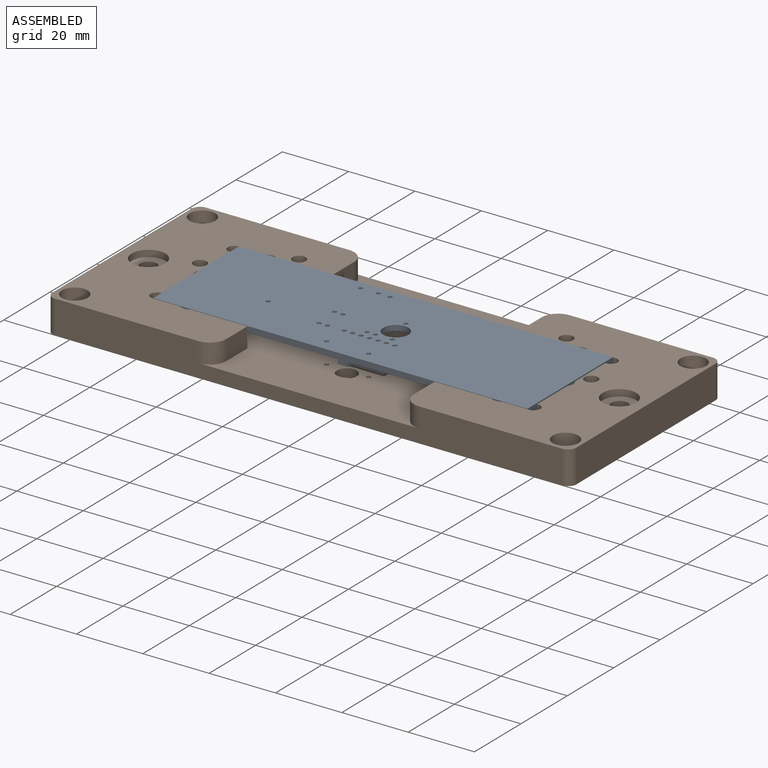
[diagram: assembled view]
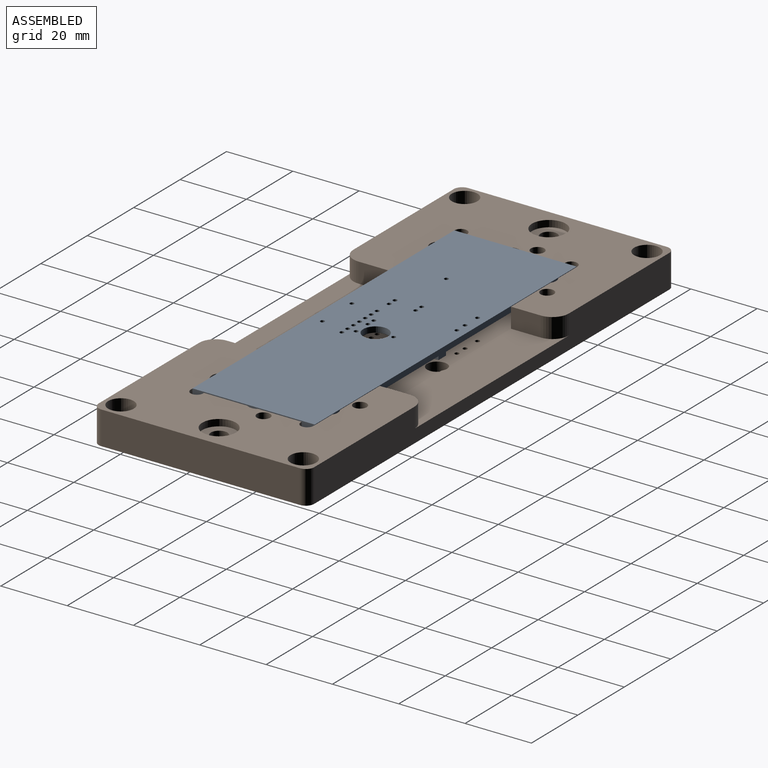
[diagram: assembled view, second angle]
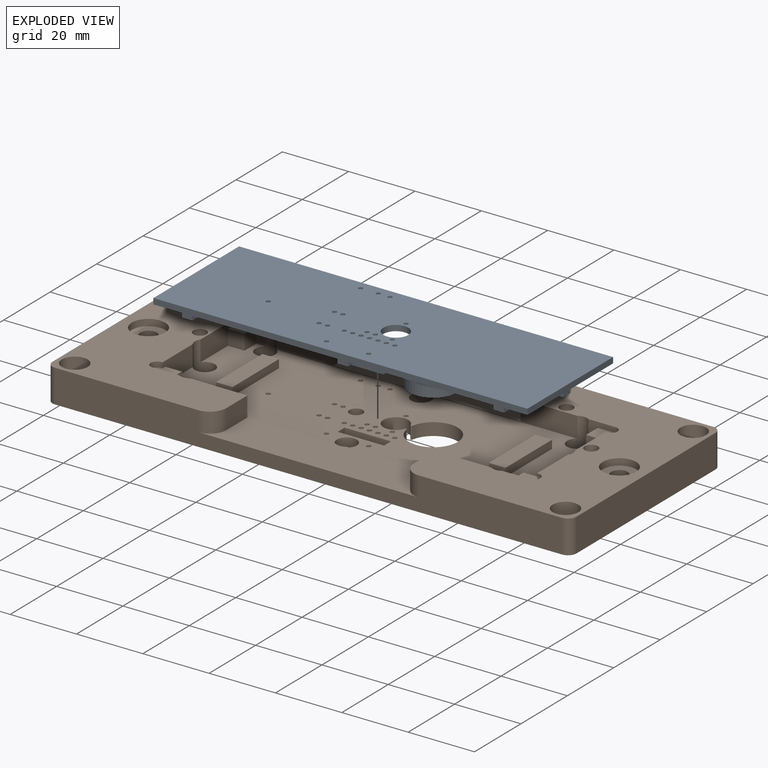
[diagram: exploded view]
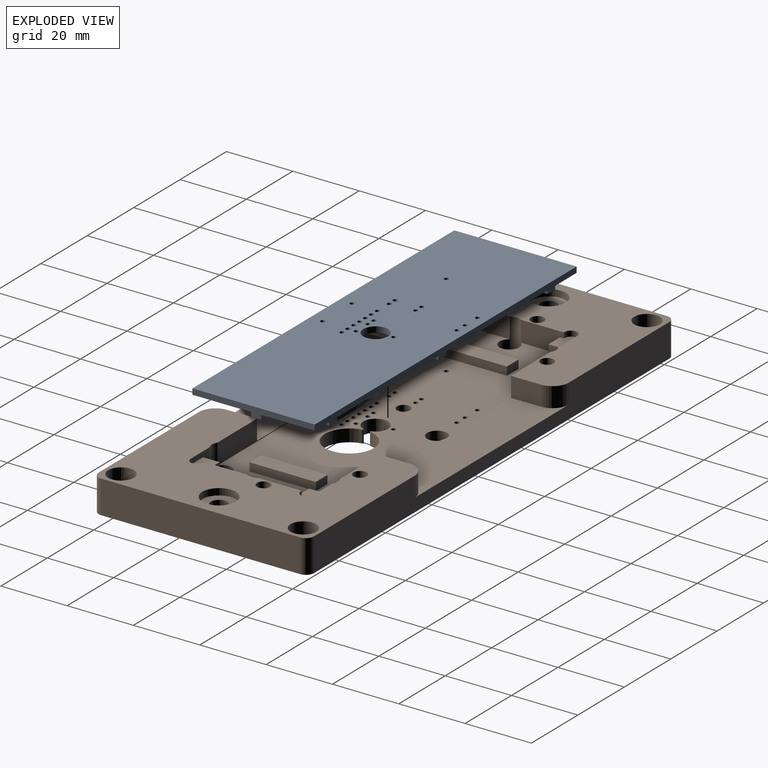
[diagram: exploded view, second angle]
ASSEMBLY  parts=2 mates=3
PART A: 82 faces, bbox 36.9x11.7x112.8 mm
  f0: plane 112.78x36.88mm, normal (0,-1,0), area 3770.4mm2, adj f1,f2,f3,f4,f6,f7,f8,f9
  f1: plane 36.88x1.73mm, normal (0,0,1), area 63.7mm2, adj f0,f2,f4,f5
  f2: plane 112.78x1.73mm, normal (-1,0,0), area 194.8mm2, adj f0,f1,f3,f5
  f3: plane 36.88x1.73mm, normal (0,0,-1), area 63.7mm2, adj f0,f2,f4,f5
  f4: plane 112.78x1.73mm, normal (1,0,0), area 194.8mm2, adj f0,f1,f3,f5
  f5: plane 112.78x36.88mm, normal (0,1,0), area 4088.5mm2, adj f1,f2,f3,f4,f6,f7,f8,f9
  f6: cylinder r=3.75mm len=7.5mm, axis (0,-1,0), area 40.7mm2, adj f0,f5
  f7: cylinder r=0.64mm len=1.73mm, axis (0,-1,0), area 6.9mm2, adj f0,f5
  f8: cylinder r=0.64mm len=1.73mm, axis (0,-1,0), area 6.9mm2, adj f0,f5
  f9: cylinder r=0.64mm len=1.73mm, axis (0,-1,0), area 6.9mm2, adj f0,f5
  f10: cylinder r=0.64mm len=1.73mm, axis (0,-1,0), area 6.9mm2, adj f0,f5
  f11: cylinder r=0.64mm len=1.73mm, axis (0,-1,0), area 6.9mm2, adj f0,f5
  f12: cylinder r=0.64mm len=1.73mm, axis (0,-1,0), area 6.9mm2, adj f0,f5
  f13: cylinder r=0.64mm len=1.73mm, axis (0,-1,0), area 6.9mm2, adj f0,f5
  f14: cylinder r=0.64mm len=1.73mm, axis (0,-1,0), area 6.9mm2, adj f0,f5
  f15: cylinder r=0.64mm len=1.73mm, axis (0,-1,0), area 6.9mm2, adj f0,f5
  f16: cylinder r=0.64mm len=1.73mm, axis (0,-1,0), area 6.9mm2, adj f0,f5
  f17: cylinder r=0.64mm len=1.73mm, axis (0,-1,0), area 6.9mm2, adj f0,f5
  f18: cylinder r=0.64mm len=1.73mm, axis (0,-1,0), area 6.9mm2, adj f0,f5
  f19: cylinder r=0.64mm len=1.73mm, axis (0,-1,0), area 6.9mm2, adj f0,f5
  f20: cylinder r=0.64mm len=1.73mm, axis (0,-1,0), area 6.9mm2, adj f0,f5
  f21: cylinder r=0.64mm len=1.73mm, axis (0,-1,0), area 6.9mm2, adj f0,f5
  f22: cylinder r=0.64mm len=1.73mm, axis (0,-1,0), area 6.9mm2, adj f0,f5
  f23: cylinder r=0.64mm len=1.73mm, axis (0,-1,0), area 6.9mm2, adj f0,f5
  f24: cylinder r=0.64mm len=1.73mm, axis (0,-1,0), area 6.9mm2, adj f0,f5
  f25: cylinder r=0.64mm len=1.73mm, axis (0,-1,0), area 6.9mm2, adj f0,f5
  f26: cylinder r=0.64mm len=1.73mm, axis (0,-1,0), area 6.9mm2, adj f0,f5
  f27: cylinder r=0.64mm len=1.73mm, axis (0,-1,0), area 6.9mm2, adj f0,f5
  f28: plane 2.8x1.9mm, normal (1,0,0), area 5.3mm2, adj f0,f29,f31,f32
  f29: plane 3.2x1.9mm, normal (0,0,1), area 6.1mm2, adj f0,f28,f30,f32
  f30: plane 2.8x1.9mm, normal (-1,0,0), area 5.3mm2, adj f0,f29,f31,f32
  f31: plane 3.2x1.9mm, normal (0,0,-1), area 6.1mm2, adj f0,f28,f30,f32
  f32: plane 3.2x2.8mm, normal (0,-1,0), area 9mm2, adj f28,f29,f30,f31
  f33: plane 3.2x1.9mm, normal (1,0,0), area 6.1mm2, adj f0,f34,f36,f37
  f34: plane 2.8x1.9mm, normal (0,0,1), area 5.3mm2, adj f0,f33,f35,f37
  f35: plane 3.2x1.9mm, normal (-1,0,0), area 6.1mm2, adj f0,f34,f36,f37
  f36: plane 2.8x1.9mm, normal (0,0,-1), area 5.3mm2, adj f0,f33,f35,f37
  f37: plane 3.2x2.8mm, normal (0,-1,0), area 9mm2, adj f33,f34,f35,f36
  f38: plane 3.2x1.9mm, normal (1,0,0), area 6.1mm2, adj f0,f39,f41,f42
  f39: plane 2.8x1.9mm, normal (0,0,1), area 5.3mm2, adj f0,f38,f40,f42
  f40: plane 3.2x1.9mm, normal (-1,0,0), area 6.1mm2, adj f0,f39,f41,f42
  f41: plane 2.8x1.9mm, normal (0,0,-1), area 5.3mm2, adj f0,f38,f40,f42
  f42: plane 3.2x2.8mm, normal (0,-1,0), area 9mm2, adj f38,f39,f40,f41
  f43: plane 3.2x1.9mm, normal (1,0,0), area 6.1mm2, adj f0,f44,f46,f47
  f44: plane 2.8x1.9mm, normal (0,0,1), area 5.3mm2, adj f0,f43,f45,f47
  f45: plane 3.2x1.9mm, normal (-1,0,0), area 6.1mm2, adj f0,f44,f46,f47
  f46: plane 2.8x1.9mm, normal (0,0,-1), area 5.3mm2, adj f0,f43,f45,f47
  f47: plane 3.2x2.8mm, normal (0,-1,0), area 9mm2, adj f43,f44,f45,f46
  f48: plane 3.2x1.9mm, normal (1,0,0), area 6.1mm2, adj f0,f49,f51,f52
  f49: plane 2.8x1.9mm, normal (0,0,1), area 5.3mm2, adj f0,f48,f50,f52
  f50: plane 3.2x1.9mm, normal (-1,0,0), area 6.1mm2, adj f0,f49,f51,f52
  f51: plane 2.8x1.9mm, normal (0,0,-1), area 5.3mm2, adj f0,f48,f50,f52
  f52: plane 3.2x2.8mm, normal (0,-1,0), area 9mm2, adj f48,f49,f50,f51
  f53: plane 3.2x1.9mm, normal (1,0,0), area 6.1mm2, adj f0,f54,f56,f57
  f54: plane 2.8x1.9mm, normal (0,0,1), area 5.3mm2, adj f0,f53,f55,f57
  f55: plane 3.2x1.9mm, normal (-1,0,0), area 6.1mm2, adj f0,f54,f56,f57
  f56: plane 2.8x1.9mm, normal (0,0,-1), area 5.3mm2, adj f0,f53,f55,f57
  f57: plane 3.2x2.8mm, normal (0,-1,0), area 9mm2, adj f53,f54,f55,f56
  f58: plane 3.2x1.9mm, normal (1,0,0), area 6.1mm2, adj f0,f59,f61,f62
  f59: plane 2.8x1.9mm, normal (0,0,1), area 5.3mm2, adj f0,f58,f60,f62
  f60: plane 3.2x1.9mm, normal (-1,0,0), area 6.1mm2, adj f0,f59,f61,f62
  f61: plane 2.8x1.9mm, normal (0,0,-1), area 5.3mm2, adj f0,f58,f60,f62
  f62: plane 3.2x2.8mm, normal (0,-1,0), area 9mm2, adj f58,f59,f60,f61
  f63: plane 2.8x1.9mm, normal (1,0,0), area 5.3mm2, adj f0,f64,f66,f67
  f64: plane 3.2x1.9mm, normal (0,0,1), area 6.1mm2, adj f0,f63,f65,f67
  f65: plane 2.8x1.9mm, normal (-1,0,0), area 5.3mm2, adj f0,f64,f66,f67
  f66: plane 3.2x1.9mm, normal (0,0,-1), area 6.1mm2, adj f0,f63,f65,f67
  f67: plane 3.2x2.8mm, normal (0,-1,0), area 9mm2, adj f63,f64,f65,f66
  f68: plane 13.9x4.15mm, normal (1,0,0), area 57.7mm2, adj f0,f69,f71,f72
  f69: plane 4.15x2.95mm, normal (0,0,1), area 12.2mm2, adj f0,f68,f70,f72
  f70: plane 13.9x4.15mm, normal (-1,0,0), area 57.7mm2, adj f0,f69,f71,f72
  f71: plane 4.15x2.95mm, normal (0,0,-1), area 12.2mm2, adj f0,f68,f70,f72
  f72: plane 13.9x2.95mm, normal (0,-1,0), area 41mm2, adj f68,f69,f70,f71
  f73: cylinder r=7.25mm len=14.5mm, axis (0,1,0), area 455.5mm2, adj f0,f74
  f74: plane 14.5x14.5mm, normal (0,-1,0), area 165.1mm2, adj f73
  f75: plane 6.5x2.5mm, normal (1,0,0), area 16.2mm2, adj f0,f76,f78,f79
  f76: plane 6.2x2.5mm, normal (0,0,1), area 15.5mm2, adj f0,f75,f77,f79
  f77: plane 6.5x2.5mm, normal (-1,0,0), area 16.2mm2, adj f0,f76,f78,f79
  f78: plane 6.2x2.5mm, normal (0,0,-1), area 15.5mm2, adj f0,f75,f77,f79
  f79: plane 6.5x6.2mm, normal (0,-1,0), area 35.4mm2, adj f75,f76,f77,f78,f80
  f80: cylinder r=1.25mm len=2.6mm, axis (0,1,0), area 20.4mm2, adj f79,f81
  f81: plane 2.5x2.5mm, normal (0,-1,0), area 4.9mm2, adj f80
PART B: 132 faces, bbox 158x65x10 mm
  f0: cylinder r=7.35mm len=14.7mm, axis (0,0,1), area 165.1mm2, adj f21,f90,f130,f131
  f1: plane 43.68x6.23mm, normal (0,-1,0), area 112.5mm2, adj f3,f4,f12,f90,f119,f121
  f2: plane 43.68x6.23mm, normal (0,1,0), area 112.5mm2, adj f5,f7,f16,f90,f117,f118
  f3: plane 65x50.75mm, normal (0,0,1), area 2022.3mm2, adj f1,f6,f12,f14,f17,f19,f20,f22
  f4: cylinder r=3mm len=6mm, axis (0,0,1), area 71.9mm2, adj f1,f21,f72,f90,f121
  f5: cylinder r=3mm len=6mm, axis (0,0,1), area 71.9mm2, adj f2,f21,f73,f90,f118
  f6: plane 152.92x10mm, normal (0,-1,0), area 1130.2mm2, adj f3,f7,f21,f23,f24,f118,f122,f123
  f7: plane 65x50.75mm, normal (0,0,1), area 2022.3mm2, adj f2,f6,f13,f15,f16,f18,f19,f24
  f8: plane 14x3.77mm, normal (0,-1,0), area 52.8mm2, adj f9,f11,f21,f90
  f9: plane 3.77x3mm, normal (-1,0,0), area 11.3mm2, adj f8,f10,f21,f90
  f10: plane 14x3.77mm, normal (0,1,0), area 52.8mm2, adj f9,f11,f21,f90
  f11: plane 3.77x3mm, normal (1,0,0), area 11.3mm2, adj f8,f10,f21,f90
  f12: cylinder r=3mm len=10mm, axis (0,0,1), area 93mm2, adj f1,f3,f21,f44,f90
  f13: cylinder r=3mm len=10mm, axis (0,0,1), area 93mm2, adj f7,f21,f53,f57,f90
  f14: cylinder r=3mm len=10mm, axis (0,0,1), area 93mm2, adj f3,f21,f46,f49,f90
  f15: cylinder r=3mm len=10mm, axis (0,0,1), area 93mm2, adj f7,f21,f56,f72,f90
  f16: cylinder r=3mm len=10mm, axis (0,0,1), area 93mm2, adj f2,f7,f21,f54,f90
  f17: cylinder r=3mm len=10mm, axis (0,0,1), area 93mm2, adj f3,f21,f48,f73,f90
  f18: plane 59.92x10mm, normal (1,0,0), area 599.2mm2, adj f7,f21,f24,f25
  f19: plane 152.92x10mm, normal (0,1,0), area 1130.2mm2, adj f3,f7,f21,f22,f25,f121,f124,f125
  f20: plane 59.92x10mm, normal (-1,0,0), area 599.2mm2, adj f3,f21,f22,f23
  f21: plane 158x65mm, normal (0,0,-1), area 9604.4mm2, adj f0,f4,f5,f6,f8,f9,f10,f11
  f22: cylinder r=2.54mm len=10mm, axis (0,0,-1), area 39.9mm2, adj f3,f19,f20,f21
  f23: cylinder r=2.54mm len=10mm, axis (0,0,1), area 39.9mm2, adj f3,f6,f20,f21
  f24: cylinder r=2.54mm len=10mm, axis (0,0,-1), area 39.9mm2, adj f6,f7,f18,f21
  f25: cylinder r=2.54mm len=10mm, axis (0,0,1), area 39.9mm2, adj f7,f18,f19,f21
  f26: cylinder r=1.93mm len=5mm, axis (0,0,1), area 60.5mm2, adj f21,f27
  f27: plane 7.75x7.75mm, normal (0,0,1), area 35.5mm2, adj f26,f28
  f28: cylinder r=3.88mm len=7.75mm, axis (0,0,1), area 121.7mm2, adj f3,f27
  f29: cylinder r=1.93mm len=5mm, axis (0,0,1), area 60.5mm2, adj f21,f30
  f30: plane 7.75x7.75mm, normal (0,0,1), area 35.5mm2, adj f29,f31
  f31: cylinder r=3.88mm len=7.75mm, axis (0,0,1), area 121.7mm2, adj f7,f30
  f32: cylinder r=1.93mm len=5mm, axis (0,0,1), area 60.5mm2, adj f21,f33
  f33: plane 7.75x7.75mm, normal (0,0,1), area 35.5mm2, adj f32,f34
  f34: cylinder r=3.88mm len=7.75mm, axis (0,0,1), area 121.7mm2, adj f7,f33
  f35: cylinder r=1.93mm len=5mm, axis (0,0,1), area 60.5mm2, adj f21,f36
  f36: plane 7.75x7.75mm, normal (0,0,1), area 35.5mm2, adj f35,f37
  f37: cylinder r=3.88mm len=7.75mm, axis (0,0,1), area 121.7mm2, adj f3,f36
  f38: cylinder r=2.5mm len=8mm, axis (0,0,1), area 125.7mm2, adj f21,f39
  f39: plane 10.15x10.15mm, normal (0,0,1), area 61.3mm2, adj f38,f40
  f40: cylinder r=5.07mm len=10.15mm, axis (0,0,1), area 63.8mm2, adj f7,f39
  f41: cylinder r=2.5mm len=8mm, axis (0,0,1), area 125.7mm2, adj f21,f42
  f42: plane 10.15x10.15mm, normal (0,0,1), area 61.3mm2, adj f41,f43
  f43: cylinder r=5.07mm len=10.15mm, axis (0,0,1), area 63.8mm2, adj f3,f42
  f44: plane 8.19x6.23mm, normal (0,-1,0), area 26.4mm2, adj f3,f12,f47,f70,f84,f90
  f45: plane 1.63x0.35mm, normal (0,1,0), area 0.6mm2, adj f3,f46,f47,f71
  f46: plane 13.05x6.23mm, normal (1,0,0), area 75.7mm2, adj f3,f14,f45,f47,f85,f90
  f47: plane 7.25x5mm, normal (0,0,1), area 32mm2, adj f44,f45,f46,f70,f71,f84,f85
  f48: plane 8.19x6.23mm, normal (0,1,0), area 26.4mm2, adj f3,f17,f51,f68,f88,f90
  f49: plane 13.05x6.23mm, normal (1,0,0), area 75.7mm2, adj f3,f14,f50,f51,f86,f90
  f50: plane 1.63x0.35mm, normal (0,-1,0), area 0.6mm2, adj f3,f49,f51,f69
  f51: plane 7.25x5mm, normal (0,0,1), area 32mm2, adj f48,f49,f50,f68,f69,f86,f88
  f52: plane 1.63x0.35mm, normal (0,-1,0), area 0.6mm2, adj f7,f53,f55,f67
  f53: plane 13.05x6.23mm, normal (-1,0,0), area 75.7mm2, adj f7,f13,f52,f55,f81,f90
  f54: plane 8.19x6.23mm, normal (0,1,0), area 26.4mm2, adj f7,f16,f55,f66,f80,f90
  f55: plane 7.25x5mm, normal (0,0,1), area 32mm2, adj f52,f53,f54,f66,f67,f80,f81
  f56: plane 8.19x6.23mm, normal (0,-1,0), area 26.4mm2, adj f7,f15,f59,f65,f83,f90
  f57: plane 13.05x6.23mm, normal (-1,0,0), area 75.7mm2, adj f7,f13,f58,f59,f82,f90
  f58: plane 1.63x0.35mm, normal (0,1,0), area 0.6mm2, adj f7,f57,f59,f64
  f59: plane 7.25x5mm, normal (0,0,1), area 32mm2, adj f56,f57,f58,f64,f65,f82,f83
  f60: cylinder r=2mm len=10mm, axis (0,0,1), area 125.7mm2, adj f7,f21
  f61: cylinder r=2mm len=10mm, axis (0,0,1), area 125.7mm2, adj f7,f21
  f62: cylinder r=2mm len=10mm, axis (0,0,1), area 125.7mm2, adj f3,f21
  f63: cylinder r=2mm len=10mm, axis (0,0,1), area 125.7mm2, adj f3,f21
  f64: cylinder r=1.9mm len=1.9mm, axis (0,0,-1), area 4.8mm2, adj f7,f58,f59,f65
  f65: cylinder r=1.9mm len=1.9mm, axis (0,0,-1), area 4.8mm2, adj f7,f56,f59,f64
  f66: cylinder r=1.9mm len=1.9mm, axis (0,0,-1), area 4.8mm2, adj f7,f54,f55,f67
  f67: cylinder r=1.9mm len=1.9mm, axis (0,0,-1), area 4.8mm2, adj f7,f52,f55,f66
  f68: cylinder r=1.9mm len=1.9mm, axis (0,0,-1), area 4.8mm2, adj f3,f48,f51,f69
  f69: cylinder r=1.9mm len=1.9mm, axis (0,0,-1), area 4.8mm2, adj f3,f50,f51,f68
  f70: cylinder r=1.9mm len=1.9mm, axis (0,0,-1), area 4.8mm2, adj f3,f44,f47,f71
  f71: cylinder r=1.9mm len=1.9mm, axis (0,0,-1), area 4.8mm2, adj f3,f45,f47,f70
  f72: plane 43.68x6.23mm, normal (0,-1,0), area 112.5mm2, adj f4,f7,f15,f90,f120,f121
  f73: plane 43.68x6.23mm, normal (0,1,0), area 112.5mm2, adj f3,f5,f17,f90,f116,f118
  f74: plane 20x2.5mm, normal (-1,0,0), area 49.9mm2, adj f75,f89,f90,f93
  f75: plane 5x2.5mm, normal (0,1,0), area 12.5mm2, adj f74,f76,f90,f93
  f76: plane 20x2.5mm, normal (1,0,0), area 49.9mm2, adj f75,f89,f90,f93
  f77: plane 20x2.5mm, normal (-1,0,0), area 49.9mm2, adj f78,f87,f90,f94
  f78: plane 5x2.5mm, normal (0,1,0), area 12.5mm2, adj f77,f79,f90,f94
  f79: plane 20x2.5mm, normal (1,0,0), area 49.9mm2, adj f78,f87,f90,f94
  f80: plane 5x4.6mm, normal (-1,0,0), area 23mm2, adj f54,f55,f81,f90
  f81: plane 5x4.6mm, normal (0,1,0), area 23mm2, adj f53,f55,f80,f90
  f82: plane 5x4.6mm, normal (0,-1,0), area 23mm2, adj f57,f59,f83,f90
  f83: plane 5x4.6mm, normal (-1,0,0), area 23mm2, adj f56,f59,f82,f90
  f84: plane 5x4.6mm, normal (1,0,0), area 23mm2, adj f44,f47,f85,f90
  f85: plane 5x4.6mm, normal (0,-1,0), area 23mm2, adj f46,f47,f84,f90
  f86: plane 5x4.6mm, normal (0,1,0), area 23mm2, adj f49,f51,f88,f90
  f87: plane 5x2.5mm, normal (0,-1,0), area 12.5mm2, adj f77,f79,f90,f94
  f88: plane 5x4.6mm, normal (1,0,0), area 23mm2, adj f48,f51,f86,f90
  f89: plane 5x2.5mm, normal (0,-1,0), area 12.5mm2, adj f74,f76,f90,f93
  f90: plane 113x37mm, normal (0,0,1), area 3366mm2, adj f0,f1,f2,f4,f5,f8,f9,f10
  f91: cylinder r=3.75mm len=7.5mm, axis (0,0,1), area 79.9mm2, adj f21,f90,f128,f129
  f92: cylinder r=2mm len=4mm, axis (0,0,1), area 47.4mm2, adj f21,f90
  f93: plane 20x5mm, normal (0,0,1), area 100mm2, adj f74,f75,f76,f89
  f94: plane 20x5mm, normal (0,0,1), area 100mm2, adj f77,f78,f79,f87
  f95: cylinder r=0.66mm len=3.77mm, axis (0,0,1), area 15.6mm2, adj f21,f90
  f96: cylinder r=0.66mm len=3.77mm, axis (0,0,1), area 15.6mm2, adj f21,f90
  f97: cylinder r=0.66mm len=3.77mm, axis (0,0,1), area 15.6mm2, adj f21,f90
  f98: cylinder r=0.66mm len=3.77mm, axis (0,0,1), area 15.6mm2, adj f21,f90
  f99: cylinder r=0.66mm len=3.77mm, axis (0,0,1), area 15.6mm2, adj f21,f90
  f100: cylinder r=0.66mm len=3.77mm, axis (0,0,1), area 15.6mm2, adj f21,f90
  f101: cylinder r=0.66mm len=3.77mm, axis (0,0,1), area 15.6mm2, adj f21,f90
  f102: cylinder r=0.66mm len=3.77mm, axis (0,0,1), area 15.6mm2, adj f21,f90
  f103: cylinder r=0.66mm len=3.77mm, axis (0,0,1), area 15.6mm2, adj f21,f90
  f104: cylinder r=0.66mm len=3.77mm, axis (0,0,1), area 15.6mm2, adj f21,f90
  f105: cylinder r=0.66mm len=3.77mm, axis (0,0,1), area 15.6mm2, adj f21,f90
  f106: cylinder r=0.66mm len=3.77mm, axis (0,0,1), area 15.6mm2, adj f21,f90
  f107: cylinder r=0.66mm len=3.77mm, axis (0,0,1), area 15.6mm2, adj f21,f90
  f108: cylinder r=0.66mm len=3.77mm, axis (0,0,1), area 15.6mm2, adj f21,f90
  f109: cylinder r=0.66mm len=3.77mm, axis (0,0,1), area 15.6mm2, adj f21,f90
  f110: cylinder r=0.66mm len=3.77mm, axis (0,0,1), area 15.6mm2, adj f21,f90
  f111: cylinder r=0.66mm len=3.77mm, axis (0,0,1), area 15.6mm2, adj f21,f90
  f112: cylinder r=0.66mm len=3.77mm, axis (0,0,1), area 15.6mm2, adj f21,f90
  f113: cylinder r=0.66mm len=3.77mm, axis (0,0,1), area 15.6mm2, adj f21,f90
  f114: cylinder r=0.66mm len=3.77mm, axis (0,0,1), area 15.6mm2, adj f21,f90
  f115: cylinder r=0.66mm len=3.77mm, axis (0,0,1), area 15.6mm2, adj f21,f90
  f116: plane 9x6mm, normal (1,0,0), area 54mm2, adj f3,f73,f118,f122
  f117: plane 9x6mm, normal (-1,0,0), area 54mm2, adj f2,f7,f118,f123
  f118: plane 66.5x14mm, normal (0,0,1), area 800.6mm2, adj f2,f5,f6,f73,f116,f117,f122,f123
  f119: plane 9x6mm, normal (1,0,0), area 54mm2, adj f1,f3,f121,f124
  f120: plane 9x6mm, normal (-1,0,0), area 54mm2, adj f7,f72,f121,f125
  f121: plane 66.5x14mm, normal (0,0,1), area 800.6mm2, adj f1,f4,f19,f72,f119,f120,f124,f125
  f122: cylinder r=5mm len=6mm, axis (0,0,-1), area 47.1mm2, adj f3,f6,f116,f118
  f123: cylinder r=5mm len=6mm, axis (0,0,1), area 47.1mm2, adj f6,f7,f117,f118
  f124: cylinder r=5mm len=6mm, axis (0,0,-1), area 47.1mm2, adj f3,f19,f119,f121
  f125: cylinder r=5mm len=6mm, axis (0,0,1), area 47.1mm2, adj f7,f19,f120,f121
  f126: plane 3.77x0.01mm, normal (0,1,0), area 0mm2, adj f21,f90,f129,f131
  f127: plane 3.77x0.01mm, normal (0,-1,0), area 0mm2, adj f21,f90,f128,f130
  f128: cylinder r=0.25mm len=3.77mm, axis (0,0,1), area 1.2mm2, adj f21,f90,f91,f127
  f129: cylinder r=0.25mm len=3.77mm, axis (0,0,1), area 1.2mm2, adj f21,f90,f91,f126
  f130: cylinder r=0.25mm len=3.77mm, axis (0,0,1), area 1.3mm2, adj f0,f21,f90,f127
  f131: cylinder r=0.25mm len=3.77mm, axis (0,0,1), area 1.3mm2, adj f0,f21,f90,f126
PLACE A rot(axis=(0.58,0.58,0.58),120deg) t=(6.13,31.76,19.62)mm
PLACE B t=(-38.58,64.33,21.25)mm fixed
MATE planar A.f0 <-> B.f59  axis (0,0,-1) through (39.59,31.96,19.62)mm
MATE cylindrical A.f73 <-> B.f0  axis (0,0,1) through (55.31,31.83,14.62)mm
MATE parallel A.f2 <-> B.f54  axis (0,-1,0) through (40.19,13.39,20.49)mm
